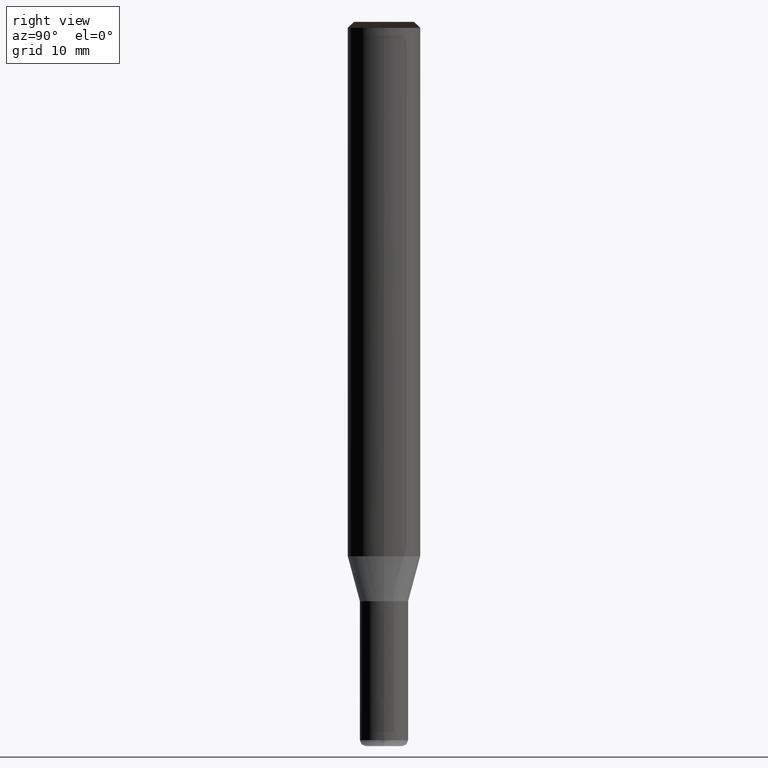
[diagram: clean part render]
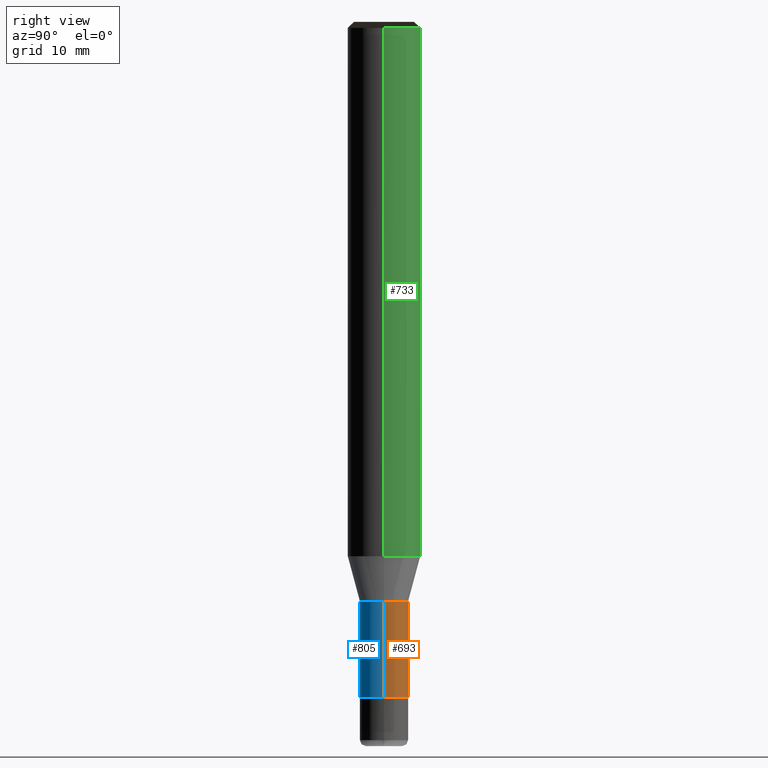
[diagram: same view with three faces highlighted in distinct colors, each labeled with its STEP entity id]
A machine part, right view with three faces highlighted in distinct colors.
Their STEP definitions:

[orange] entity #693 — the highlighted face is a freeform B-spline surface patch.
#452=CARTESIAN_POINT('',(2.0,0.0,-11.732050807569));
#453=CARTESIAN_POINT('',(2.0,2.0,-11.732050807569));
#454=CARTESIAN_POINT('',(0.0,2.0,-11.732050807569));
#455=CARTESIAN_POINT('',(-2.0,2.0,-11.732050807569));
#456=CARTESIAN_POINT('',(-2.0,0.0,-11.732050807569));
#470=CARTESIAN_POINT('',(2.0,0.0,-3.732050807569));
#471=CARTESIAN_POINT('',(2.0,2.0,-3.732050807569));
#472=CARTESIAN_POINT('',(0.0,2.0,-3.732050807569));
#473=CARTESIAN_POINT('',(-2.0,2.0,-3.732050807569));
#474=CARTESIAN_POINT('',(-2.0,0.0,-3.732050807569));
#674=(
BOUNDED_SURFACE()
B_SPLINE_SURFACE(1,2,(
(#452,#453,#454,#455,#456),
(#470,#471,#472,#473,#474)
), .UNSPECIFIED.,.F.,.F.,.F.)
B_SPLINE_SURFACE_WITH_KNOTS((2,2),(3,2,3),(
0.0,1.0),(
0.0,0.5,1.0), .UNSPECIFIED.)
GEOMETRIC_REPRESENTATION_ITEM()
RATIONAL_B_SPLINE_SURFACE(((1.0,0.707106781187,1.0,0.707106781187,1.0),
(1.0,0.707106781187,1.0,0.707106781187,1.0)
))
REPRESENTATION_ITEM('')
SURFACE()
);
#675=(
BOUNDED_CURVE()
B_SPLINE_CURVE(2,(#470,#471,#472,#473,#474),.UNSPECIFIED.,.F.,.F.)
B_SPLINE_CURVE_WITH_KNOTS((3,2,3),
(0.0,0.5,1.0),.UNSPECIFIED.)
CURVE()
GEOMETRIC_REPRESENTATION_ITEM()
RATIONAL_B_SPLINE_CURVE((1.0,0.707106781187,1.0,0.707106781187,1.0))
REPRESENTATION_ITEM('')
);
#676=(
BOUNDED_CURVE()
B_SPLINE_CURVE(1,(#474,#456),.UNSPECIFIED.,.F.,.F.)
B_SPLINE_CURVE_WITH_KNOTS((2,2),
(0.0,1.0),.UNSPECIFIED.)
CURVE()
GEOMETRIC_REPRESENTATION_ITEM()
RATIONAL_B_SPLINE_CURVE((1.0,1.0))
REPRESENTATION_ITEM('')
);
#677=(
BOUNDED_CURVE()
B_SPLINE_CURVE(2,(#456,#455,#454,#453,#452),.UNSPECIFIED.,.F.,.F.)
B_SPLINE_CURVE_WITH_KNOTS((3,2,3),
(0.0,0.5,1.0),.UNSPECIFIED.)
CURVE()
GEOMETRIC_REPRESENTATION_ITEM()
RATIONAL_B_SPLINE_CURVE((1.0,0.707106781187,1.0,0.707106781187,1.0))
REPRESENTATION_ITEM('')
);
#678=(
BOUNDED_CURVE()
B_SPLINE_CURVE(1,(#452,#470),.UNSPECIFIED.,.F.,.F.)
B_SPLINE_CURVE_WITH_KNOTS((2,2),
(0.0,1.0),.UNSPECIFIED.)
CURVE()
GEOMETRIC_REPRESENTATION_ITEM()
RATIONAL_B_SPLINE_CURVE((1.0,1.0))
REPRESENTATION_ITEM('')
);
#679=VERTEX_POINT('',#452);
#680=VERTEX_POINT('',#456);
#681=VERTEX_POINT('',#470);
#682=VERTEX_POINT('',#474);
#683=EDGE_CURVE('',#681,#682,#675,.T.);
#684=EDGE_CURVE('',#682,#680,#676,.T.);
#685=EDGE_CURVE('',#680,#679,#677,.T.);
#686=EDGE_CURVE('',#679,#681,#678,.T.);
#687=ORIENTED_EDGE('',*,*,#683,.T.);
#688=ORIENTED_EDGE('',*,*,#684,.T.);
#689=ORIENTED_EDGE('',*,*,#685,.T.);
#690=ORIENTED_EDGE('',*,*,#686,.T.);
#691=EDGE_LOOP('',(#687,#688,#689,#690));
#692=FACE_OUTER_BOUND('',#691,.T.);
#693=ADVANCED_FACE('',(#692),#674,.T.);

[blue] entity #805 — the highlighted face is a freeform B-spline surface patch.
#452=CARTESIAN_POINT('',(2.0,0.0,-11.732050807569));
#456=CARTESIAN_POINT('',(-2.0,0.0,-11.732050807569));
#467=CARTESIAN_POINT('',(-2.0,-2.0,-11.732050807569));
#468=CARTESIAN_POINT('',(0.0,-2.0,-11.732050807569));
#469=CARTESIAN_POINT('',(2.0,-2.0,-11.732050807569));
#470=CARTESIAN_POINT('',(2.0,0.0,-3.732050807569));
#474=CARTESIAN_POINT('',(-2.0,0.0,-3.732050807569));
#491=CARTESIAN_POINT('',(-2.0,-2.0,-3.732050807569));
#492=CARTESIAN_POINT('',(0.0,-2.0,-3.732050807569));
#493=CARTESIAN_POINT('',(2.0,-2.0,-3.732050807569));
#786=(
BOUNDED_SURFACE()
B_SPLINE_SURFACE(1,2,(
(#456,#467,#468,#469,#452),
(#474,#491,#492,#493,#470)
), .UNSPECIFIED.,.F.,.F.,.F.)
B_SPLINE_SURFACE_WITH_KNOTS((2,2),(3,2,3),(
0.0,1.0),(
0.0,0.5,1.0), .UNSPECIFIED.)
GEOMETRIC_REPRESENTATION_ITEM()
RATIONAL_B_SPLINE_SURFACE(((1.0,0.707106781187,1.0,0.707106781187,1.0),
(1.0,0.707106781187,1.0,0.707106781187,1.0)
))
REPRESENTATION_ITEM('')
SURFACE()
);
#787=(
BOUNDED_CURVE()
B_SPLINE_CURVE(1,(#474,#456),.UNSPECIFIED.,.F.,.F.)
B_SPLINE_CURVE_WITH_KNOTS((2,2),
(0.0,1.0),.UNSPECIFIED.)
CURVE()
GEOMETRIC_REPRESENTATION_ITEM()
RATIONAL_B_SPLINE_CURVE((1.0,1.0))
REPRESENTATION_ITEM('')
);
#788=(
BOUNDED_CURVE()
B_SPLINE_CURVE(2,(#456,#467,#468,#469,#452),.UNSPECIFIED.,.F.,.F.)
B_SPLINE_CURVE_WITH_KNOTS((3,2,3),
(0.0,0.5,1.0),.UNSPECIFIED.)
CURVE()
GEOMETRIC_REPRESENTATION_ITEM()
RATIONAL_B_SPLINE_CURVE((1.0,0.707106781187,1.0,0.707106781187,1.0))
REPRESENTATION_ITEM('')
);
#789=(
BOUNDED_CURVE()
B_SPLINE_CURVE(1,(#452,#470),.UNSPECIFIED.,.F.,.F.)
B_SPLINE_CURVE_WITH_KNOTS((2,2),
(0.0,1.0),.UNSPECIFIED.)
CURVE()
GEOMETRIC_REPRESENTATION_ITEM()
RATIONAL_B_SPLINE_CURVE((1.0,1.0))
REPRESENTATION_ITEM('')
);
#790=(
BOUNDED_CURVE()
B_SPLINE_CURVE(2,(#470,#493,#492,#491,#474),.UNSPECIFIED.,.F.,.F.)
B_SPLINE_CURVE_WITH_KNOTS((3,2,3),
(0.0,0.5,1.0),.UNSPECIFIED.)
CURVE()
GEOMETRIC_REPRESENTATION_ITEM()
RATIONAL_B_SPLINE_CURVE((1.0,0.707106781187,1.0,0.707106781187,1.0))
REPRESENTATION_ITEM('')
);
#791=VERTEX_POINT('',#452);
#792=VERTEX_POINT('',#456);
#793=VERTEX_POINT('',#470);
#794=VERTEX_POINT('',#474);
#795=EDGE_CURVE('',#794,#792,#787,.T.);
#796=EDGE_CURVE('',#792,#791,#788,.T.);
#797=EDGE_CURVE('',#791,#793,#789,.T.);
#798=EDGE_CURVE('',#793,#794,#790,.T.);
#799=ORIENTED_EDGE('',*,*,#795,.T.);
#800=ORIENTED_EDGE('',*,*,#796,.T.);
#801=ORIENTED_EDGE('',*,*,#797,.T.);
#802=ORIENTED_EDGE('',*,*,#798,.T.);
#803=EDGE_LOOP('',(#799,#800,#801,#802));
#804=FACE_OUTER_BOUND('',#803,.T.);
#805=ADVANCED_FACE('',(#804),#786,.T.);

[green] entity #733 — the highlighted face is a freeform B-spline surface patch.
#475=CARTESIAN_POINT('',(3.0,0.0,0.0));
#476=CARTESIAN_POINT('',(3.0,3.0,0.0));
#477=CARTESIAN_POINT('',(0.0,3.0,0.0));
#478=CARTESIAN_POINT('',(-3.0,3.0,0.0));
#479=CARTESIAN_POINT('',(-3.0,0.0,0.0));
#480=CARTESIAN_POINT('',(3.0,0.0,43.767949192431));
#481=CARTESIAN_POINT('',(3.0,3.0,43.767949192431));
#482=CARTESIAN_POINT('',(0.0,3.0,43.767949192431));
#483=CARTESIAN_POINT('',(-3.0,3.0,43.767949192431));
#484=CARTESIAN_POINT('',(-3.0,0.0,43.767949192431));
#714=(
BOUNDED_SURFACE()
B_SPLINE_SURFACE(1,2,(
(#475,#476,#477,#478,#479),
(#480,#481,#482,#483,#484)
), .UNSPECIFIED.,.F.,.F.,.F.)
B_SPLINE_SURFACE_WITH_KNOTS((2,2),(3,2,3),(
0.0,1.0),(
0.0,0.5,1.0), .UNSPECIFIED.)
GEOMETRIC_REPRESENTATION_ITEM()
RATIONAL_B_SPLINE_SURFACE(((1.0,0.707106781187,1.0,0.707106781187,1.0),
(1.0,0.707106781187,1.0,0.707106781187,1.0)
))
REPRESENTATION_ITEM('')
SURFACE()
);
#715=(
BOUNDED_CURVE()
B_SPLINE_CURVE(2,(#480,#481,#482,#483,#484),.UNSPECIFIED.,.F.,.F.)
B_SPLINE_CURVE_WITH_KNOTS((3,2,3),
(0.0,0.5,1.0),.UNSPECIFIED.)
CURVE()
GEOMETRIC_REPRESENTATION_ITEM()
RATIONAL_B_SPLINE_CURVE((1.0,0.707106781187,1.0,0.707106781187,1.0))
REPRESENTATION_ITEM('')
);
#716=(
BOUNDED_CURVE()
B_SPLINE_CURVE(1,(#484,#479),.UNSPECIFIED.,.F.,.F.)
B_SPLINE_CURVE_WITH_KNOTS((2,2),
(0.0,1.0),.UNSPECIFIED.)
CURVE()
GEOMETRIC_REPRESENTATION_ITEM()
RATIONAL_B_SPLINE_CURVE((1.0,1.0))
REPRESENTATION_ITEM('')
);
#717=(
BOUNDED_CURVE()
B_SPLINE_CURVE(2,(#479,#478,#477,#476,#475),.UNSPECIFIED.,.F.,.F.)
B_SPLINE_CURVE_WITH_KNOTS((3,2,3),
(0.0,0.5,1.0),.UNSPECIFIED.)
CURVE()
GEOMETRIC_REPRESENTATION_ITEM()
RATIONAL_B_SPLINE_CURVE((1.0,0.707106781187,1.0,0.707106781187,1.0))
REPRESENTATION_ITEM('')
);
#718=(
BOUNDED_CURVE()
B_SPLINE_CURVE(1,(#475,#480),.UNSPECIFIED.,.F.,.F.)
B_SPLINE_CURVE_WITH_KNOTS((2,2),
(0.0,1.0),.UNSPECIFIED.)
CURVE()
GEOMETRIC_REPRESENTATION_ITEM()
RATIONAL_B_SPLINE_CURVE((1.0,1.0))
REPRESENTATION_ITEM('')
);
#719=VERTEX_POINT('',#475);
#720=VERTEX_POINT('',#479);
#721=VERTEX_POINT('',#480);
#722=VERTEX_POINT('',#484);
#723=EDGE_CURVE('',#721,#722,#715,.T.);
#724=EDGE_CURVE('',#722,#720,#716,.T.);
#725=EDGE_CURVE('',#720,#719,#717,.T.);
#726=EDGE_CURVE('',#719,#721,#718,.T.);
#727=ORIENTED_EDGE('',*,*,#723,.T.);
#728=ORIENTED_EDGE('',*,*,#724,.T.);
#729=ORIENTED_EDGE('',*,*,#725,.T.);
#730=ORIENTED_EDGE('',*,*,#726,.T.);
#731=EDGE_LOOP('',(#727,#728,#729,#730));
#732=FACE_OUTER_BOUND('',#731,.T.);
#733=ADVANCED_FACE('',(#732),#714,.T.);